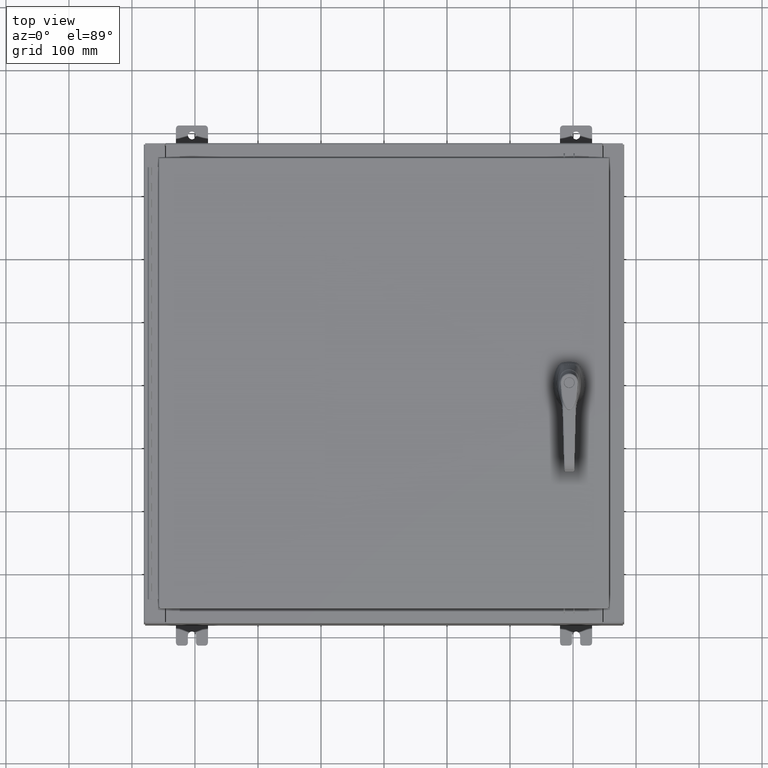
[diagram: clean part render]
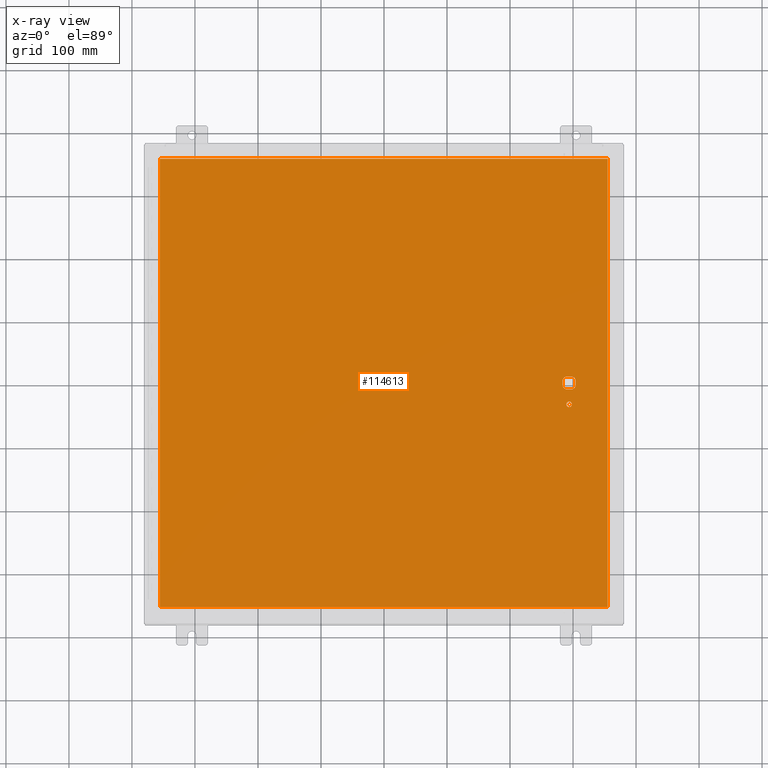
[diagram: x-ray — body ghosted, one internal face saturated and labeled with its STEP entity id]
A machine part, top view, then the same camera in x-ray: the body is ghosted and one INTERNAL B-rep face — a face not visible from any outside direction — is saturated and labeled: STEP entity #114613.
In plain terms, the highlighted planar face has unit normal (0, 0, -1).
Its self-contained STEP definition (entity closure, byte-faithful):
#2292 = CARTESIAN_POINT ( 'NONE',  ( 0.0000000000000000000, 0.4029999999999252000, -0.07470000000000003000 ) ) ;
#3161 = CARTESIAN_POINT ( 'NONE',  ( -13.99029999999999800, -14.00630000000000100, -0.07470000000000000300 ) ) ;
#4586 = CARTESIAN_POINT ( 'NONE',  ( 11.57800000000000100, 0.0000000000000000000, -0.07470000000000003000 ) ) ;
#4647 = DIRECTION ( 'NONE',  ( -0.0000000000000000000, -0.0000000000000000000, 1.000000000000000000 ) ) ;
#6553 = DIRECTION ( 'NONE',  ( -1.000000000000000000, 0.0000000000000000000, 0.0000000000000000000 ) ) ;
#6903 = VERTEX_POINT ( 'NONE', #37828 ) ;
#7987 = DIRECTION ( 'NONE',  ( 1.000000000000000000, -0.0000000000000000000, -0.0000000000000000000 ) ) ;
#9200 = VECTOR ( 'NONE', #103317, 39.37007874015748100 ) ;
#10023 = EDGE_CURVE ( 'NONE', #6903, #69092, #23048, .T. ) ;
#10644 = LINE ( 'NONE', #116357, #100154 ) ;
#11559 = DIRECTION ( 'NONE',  ( -1.000000000000000000, 0.0000000000000000000, 0.0000000000000000000 ) ) ;
#13807 = DIRECTION ( 'NONE',  ( -1.000000000000000000, -1.776356839400246700E-015, 0.0000000000000000000 ) ) ;
#13987 = VERTEX_POINT ( 'NONE', #29734 ) ;
#14440 = AXIS2_PLACEMENT_3D ( 'NONE', #4586, #69094, #13807 ) ;
#14655 = ORIENTED_EDGE ( 'NONE', *, *, #58094, .F. ) ;
#15129 = CARTESIAN_POINT ( 'NONE',  ( 0.0000000000000000000, 0.0000000000000000000, -0.07470000000000000300 ) ) ;
#15317 = CARTESIAN_POINT ( 'NONE',  ( 11.74950000000000300, -1.338000000000000100, -0.07470000000000003000 ) ) ;
#17715 = DIRECTION ( 'NONE',  ( -0.0000000000000000000, -0.0000000000000000000, 1.000000000000000000 ) ) ;
#18857 = EDGE_LOOP ( 'NONE', ( #54948, #14655, #88282, #102797, #33456, #98269, #118394, #113654 ) ) ;
#20615 = EDGE_CURVE ( 'NONE', #67549, #32750, #50459, .T. ) ;
#22551 = VECTOR ( 'NONE', #37358, 39.37007874015748100 ) ;
#23048 = LINE ( 'NONE', #116190, #47570 ) ;
#23911 = EDGE_LOOP ( 'NONE', ( #28686, #91139, #91156, #50077 ) ) ;
#24284 = DIRECTION ( 'NONE',  ( 0.0000000000000000000, -1.000000000000000000, 0.0000000000000000000 ) ) ;
#24365 = VERTEX_POINT ( 'NONE', #29390 ) ;
#24431 = DIRECTION ( 'NONE',  ( -1.000000000000000000, 0.0000000000000000000, -0.0000000000000000000 ) ) ;
#24478 = ORIENTED_EDGE ( 'NONE', *, *, #113172, .T. ) ;
#25535 = EDGE_CURVE ( 'NONE', #45590, #78252, #59095, .T. ) ;
#26040 = CARTESIAN_POINT ( 'NONE',  ( 11.77822737075631200, 0.4029999999999250300, -0.07470000000000003000 ) ) ;
#26665 = CIRCLE ( 'NONE', #98093, 0.1715000000000011500 ) ;
#28112 = CARTESIAN_POINT ( 'NONE',  ( 11.98099999999992900, 6.538620706741755000E-014, -0.07470000000000003000 ) ) ;
#28686 = ORIENTED_EDGE ( 'NONE', *, *, #10023, .F. ) ;
#29390 = CARTESIAN_POINT ( 'NONE',  ( -13.99029999999999800, 14.00629999999999400, -0.07470000000000000300 ) ) ;
#29734 = CARTESIAN_POINT ( 'NONE',  ( 11.40650000000000100, -1.338000000000000100, -0.07470000000000003000 ) ) ;
#30791 = LINE ( 'NONE', #38659, #9200 ) ;
#31291 = VERTEX_POINT ( 'NONE', #55630 ) ;
#32624 = EDGE_CURVE ( 'NONE', #32750, #31291, #30791, .T. ) ;
#32750 = VERTEX_POINT ( 'NONE', #39827 ) ;
#33456 = ORIENTED_EDGE ( 'NONE', *, *, #87145, .T. ) ;
#37358 = DIRECTION ( 'NONE',  ( 5.457491617345625000E-015, -1.000000000000000000, 0.0000000000000000000 ) ) ;
#37828 = CARTESIAN_POINT ( 'NONE',  ( 13.99030000000000100, -14.00630000000000300, -0.07470000000000000300 ) ) ;
#38659 = CARTESIAN_POINT ( 'NONE',  ( 0.0000000000000000000, -0.4029999999999252000, -0.07470000000000003000 ) ) ;
#39131 = FACE_BOUND ( 'NONE', #60278, .T. ) ;
#39451 = CIRCLE ( 'NONE', #88205, 0.4499999999999168000 ) ;
#39827 = CARTESIAN_POINT ( 'NONE',  ( 11.37777262924369200, -0.4029999999999250300, -0.07470000000000003000 ) ) ;
#42158 = DIRECTION ( 'NONE',  ( 0.0000000000000000000, 0.0000000000000000000, -1.000000000000000000 ) ) ;
#44591 = CARTESIAN_POINT ( 'NONE',  ( 11.98099999999992900, 0.2002273707563075900, -0.07470000000000003000 ) ) ;
#44634 = VECTOR ( 'NONE', #97188, 39.37007874015748100 ) ;
#45590 = VERTEX_POINT ( 'NONE', #26040 ) ;
#46025 = EDGE_CURVE ( 'NONE', #81468, #45590, #96766, .T. ) ;
#47570 = VECTOR ( 'NONE', #106881, 39.37007874015748100 ) ;
#49281 = DIRECTION ( 'NONE',  ( -0.0000000000000000000, -0.0000000000000000000, 1.000000000000000000 ) ) ;
#50077 = ORIENTED_EDGE ( 'NONE', *, *, #103086, .F. ) ;
#50459 = CIRCLE ( 'NONE', #96166, 0.4499999999999168000 ) ;
#50993 = ORIENTED_EDGE ( 'NONE', *, *, #69854, .T. ) ;
#51170 = CARTESIAN_POINT ( 'NONE',  ( 11.17500000000007500, -0.2002273707563079800, -0.07470000000000003000 ) ) ;
#51877 = VERTEX_POINT ( 'NONE', #67312 ) ;
#52909 = AXIS2_PLACEMENT_3D ( 'NONE', #15129, #42158, #24431 ) ;
#53279 = DIRECTION ( 'NONE',  ( -0.0000000000000000000, -0.0000000000000000000, 1.000000000000000000 ) ) ;
#54948 = ORIENTED_EDGE ( 'NONE', *, *, #101184, .T. ) ;
#55630 = CARTESIAN_POINT ( 'NONE',  ( 11.77822737075631200, -0.4029999999999252000, -0.07470000000000003000 ) ) ;
#56117 = VECTOR ( 'NONE', #7987, 39.37007874015748100 ) ;
#58094 = EDGE_CURVE ( 'NONE', #81468, #61758, #96231, .T. ) ;
#58115 = CIRCLE ( 'NONE', #99331, 0.1715000000000011500 ) ;
#59095 = LINE ( 'NONE', #2292, #105385 ) ;
#59868 = CARTESIAN_POINT ( 'NONE',  ( 11.57800000000000100, -1.338000000000000100, -0.07470000000000003000 ) ) ;
#60278 = EDGE_LOOP ( 'NONE', ( #50993, #24478 ) ) ;
#61758 = VERTEX_POINT ( 'NONE', #63380 ) ;
#61763 = DIRECTION ( 'NONE',  ( -0.0000000000000000000, -0.0000000000000000000, 1.000000000000000000 ) ) ;
#63380 = CARTESIAN_POINT ( 'NONE',  ( 11.98099999999992900, -0.2002273707563067300, -0.07470000000000003000 ) ) ;
#63636 = FACE_OUTER_BOUND ( 'NONE', #23911, .T. ) ;
#67312 = CARTESIAN_POINT ( 'NONE',  ( 11.17500000000007500, 0.2002273707563075900, -0.07470000000000003000 ) ) ;
#67549 = VERTEX_POINT ( 'NONE', #51170 ) ;
#68846 = EDGE_CURVE ( 'NONE', #51877, #67549, #116188, .T. ) ;
#69092 = VERTEX_POINT ( 'NONE', #85438 ) ;
#69094 = DIRECTION ( 'NONE',  ( -0.0000000000000000000, -0.0000000000000000000, 1.000000000000000000 ) ) ;
#69165 = DIRECTION ( 'NONE',  ( -1.000000000000000000, 0.0000000000000000000, 0.0000000000000000000 ) ) ;
#69854 = EDGE_CURVE ( 'NONE', #97533, #13987, #26665, .T. ) ;
#70412 = PLANE ( 'NONE',  #52909 ) ;
#72523 = CARTESIAN_POINT ( 'NONE',  ( -13.99029999999999200, -14.00630000000000300, -0.07469999999999692200 ) ) ;
#73007 = CARTESIAN_POINT ( 'NONE',  ( 11.57800000000000100, 0.0000000000000000000, -0.07470000000000003000 ) ) ;
#78252 = VERTEX_POINT ( 'NONE', #107903 ) ;
#79810 = EDGE_CURVE ( 'NONE', #95469, #6903, #86479, .T. ) ;
#80527 = AXIS2_PLACEMENT_3D ( 'NONE', #108651, #53279, #117971 ) ;
#81468 = VERTEX_POINT ( 'NONE', #44591 ) ;
#82322 = DIRECTION ( 'NONE',  ( -1.000000000000000000, -5.329070518200740300E-015, 0.0000000000000000000 ) ) ;
#85438 = CARTESIAN_POINT ( 'NONE',  ( 13.99030000000000100, 14.00629999999999400, -0.07470000000000000300 ) ) ;
#85838 = VECTOR ( 'NONE', #101683, 39.37007874015748100 ) ;
#86479 = LINE ( 'NONE', #72523, #56117 ) ;
#87145 = EDGE_CURVE ( 'NONE', #78252, #51877, #39451, .T. ) ;
#87900 = CARTESIAN_POINT ( 'NONE',  ( 13.99030000000000100, 14.00629999999999400, -0.07469999999999910000 ) ) ;
#88037 = LINE ( 'NONE', #87900, #44634 ) ;
#88205 = AXIS2_PLACEMENT_3D ( 'NONE', #73007, #17715, #82322 ) ;
#88255 = FACE_BOUND ( 'NONE', #18857, .T. ) ;
#88282 = ORIENTED_EDGE ( 'NONE', *, *, #46025, .T. ) ;
#91139 = ORIENTED_EDGE ( 'NONE', *, *, #79810, .F. ) ;
#91156 = ORIENTED_EDGE ( 'NONE', *, *, #111246, .F. ) ;
#92378 = CARTESIAN_POINT ( 'NONE',  ( 11.17500000000007500, 0.0000000000000000000, -0.07470000000000003000 ) ) ;
#95469 = VERTEX_POINT ( 'NONE', #3161 ) ;
#96166 = AXIS2_PLACEMENT_3D ( 'NONE', #104667, #49281, #113974 ) ;
#96231 = LINE ( 'NONE', #28112, #22551 ) ;
#96766 = CIRCLE ( 'NONE', #80527, 0.4499999999999168000 ) ;
#96954 = CIRCLE ( 'NONE', #14440, 0.4499999999999168000 ) ;
#97188 = DIRECTION ( 'NONE',  ( -1.000000000000000000, -0.0000000000000000000, -0.0000000000000000000 ) ) ;
#97533 = VERTEX_POINT ( 'NONE', #15317 ) ;
#98093 = AXIS2_PLACEMENT_3D ( 'NONE', #59868, #4647, #69165 ) ;
#98269 = ORIENTED_EDGE ( 'NONE', *, *, #68846, .T. ) ;
#99331 = AXIS2_PLACEMENT_3D ( 'NONE', #117180, #61763, #6553 ) ;
#100154 = VECTOR ( 'NONE', #24284, 39.37007874015748100 ) ;
#101184 = EDGE_CURVE ( 'NONE', #31291, #61758, #96954, .T. ) ;
#101683 = DIRECTION ( 'NONE',  ( 0.0000000000000000000, -1.000000000000000000, 0.0000000000000000000 ) ) ;
#102797 = ORIENTED_EDGE ( 'NONE', *, *, #25535, .T. ) ;
#103086 = EDGE_CURVE ( 'NONE', #69092, #24365, #88037, .T. ) ;
#103317 = DIRECTION ( 'NONE',  ( 1.000000000000000000, 0.0000000000000000000, 0.0000000000000000000 ) ) ;
#104667 = CARTESIAN_POINT ( 'NONE',  ( 11.57800000000000100, 0.0000000000000000000, -0.07470000000000003000 ) ) ;
#105385 = VECTOR ( 'NONE', #11559, 39.37007874015748100 ) ;
#106881 = DIRECTION ( 'NONE',  ( 0.0000000000000000000, 1.000000000000000000, 0.0000000000000000000 ) ) ;
#107903 = CARTESIAN_POINT ( 'NONE',  ( 11.37777262924369200, 0.4029999999999252000, -0.07470000000000003000 ) ) ;
#108651 = CARTESIAN_POINT ( 'NONE',  ( 11.57800000000000100, 0.0000000000000000000, -0.07470000000000003000 ) ) ;
#111246 = EDGE_CURVE ( 'NONE', #24365, #95469, #10644, .T. ) ;
#113172 = EDGE_CURVE ( 'NONE', #13987, #97533, #58115, .T. ) ;
#113654 = ORIENTED_EDGE ( 'NONE', *, *, #32624, .T. ) ;
#113974 = DIRECTION ( 'NONE',  ( -1.000000000000000000, -1.776356839400246700E-015, 0.0000000000000000000 ) ) ;
#114613 = ADVANCED_FACE ( 'NONE', ( #39131, #63636, #88255 ), #70412, .T. ) ;
#116188 = LINE ( 'NONE', #92378, #85838 ) ;
#116190 = CARTESIAN_POINT ( 'NONE',  ( 13.99030000000000100, -14.00630000000000300, -0.07470000000000019700 ) ) ;
#116357 = CARTESIAN_POINT ( 'NONE',  ( -13.99029999999999800, 14.00629999999999600, -0.07470000000000019700 ) ) ;
#117180 = CARTESIAN_POINT ( 'NONE',  ( 11.57800000000000100, -1.338000000000000100, -0.07470000000000003000 ) ) ;
#117971 = DIRECTION ( 'NONE',  ( -1.000000000000000000, -5.329070518200740300E-015, 0.0000000000000000000 ) ) ;
#118394 = ORIENTED_EDGE ( 'NONE', *, *, #20615, .T. ) ;